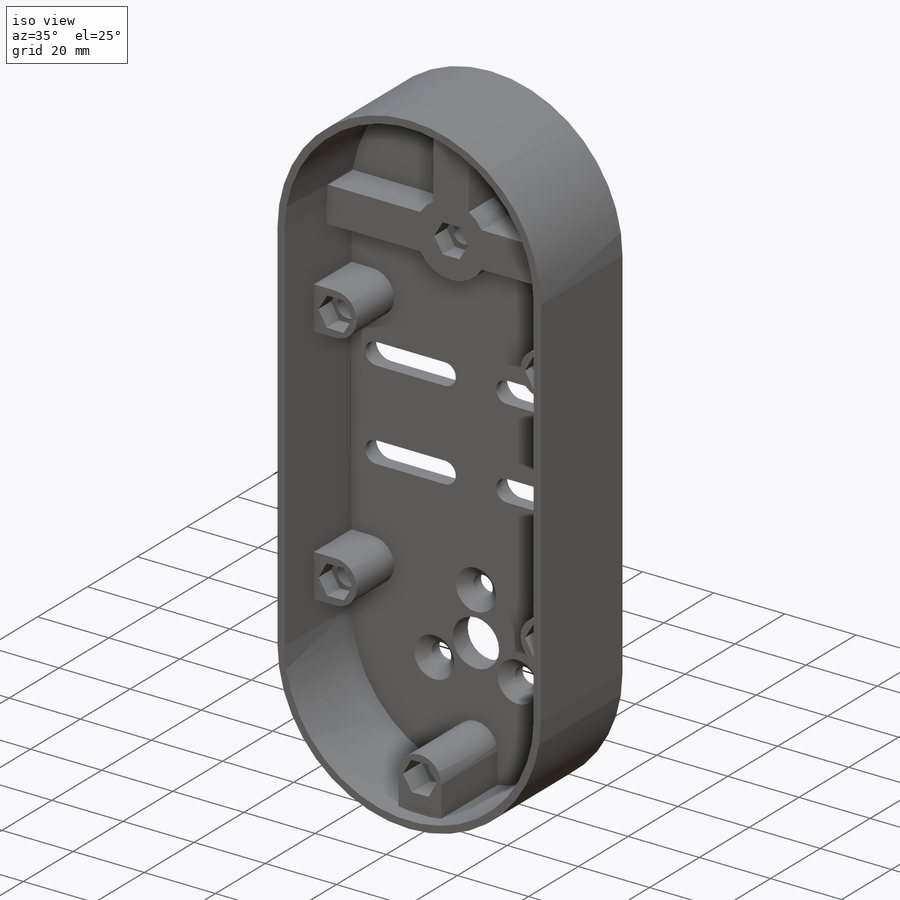
[diagram: iso view]
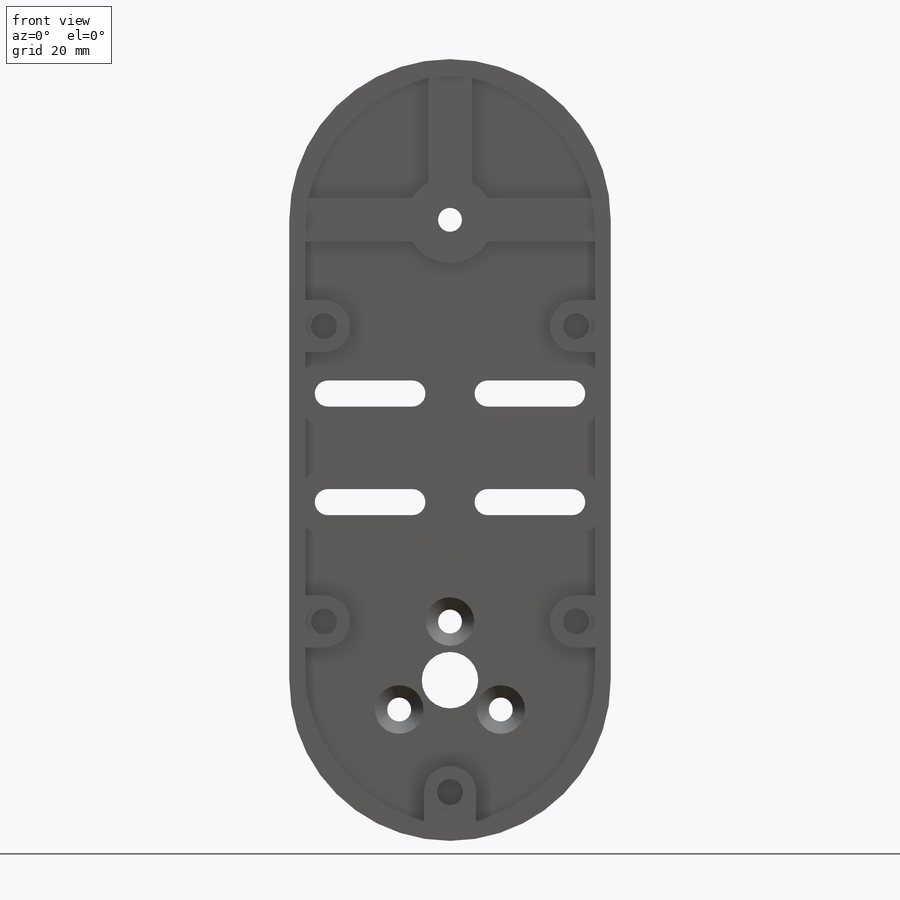
[diagram: front view]
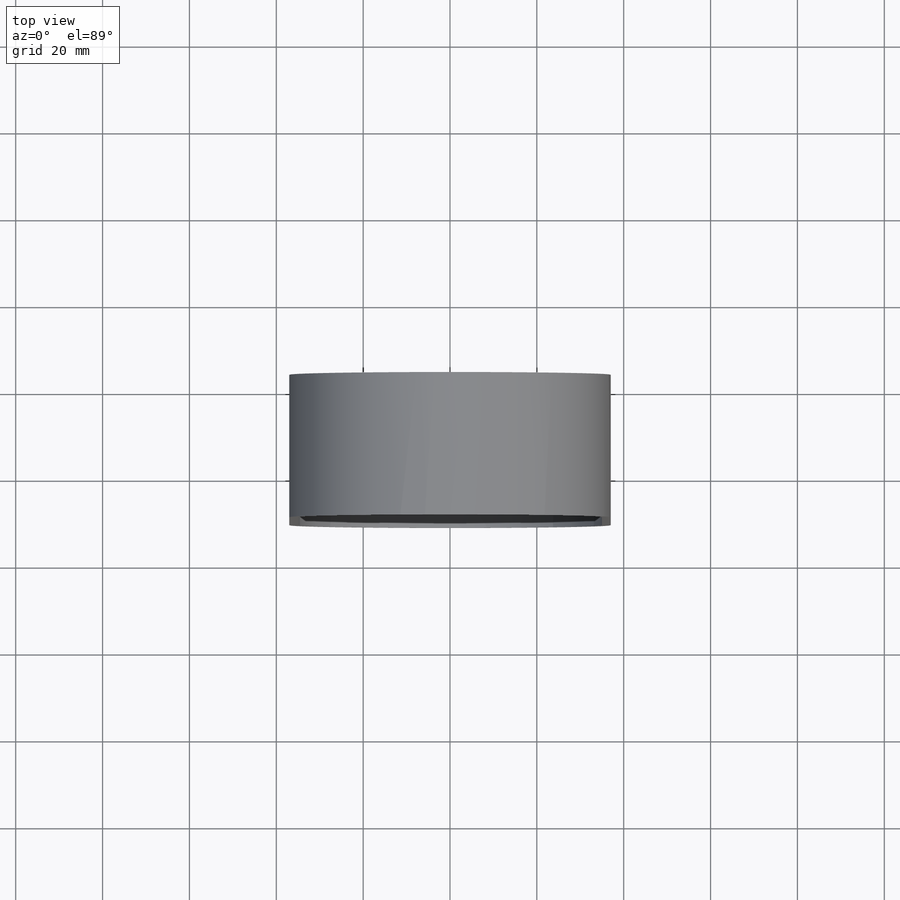
[diagram: top view]
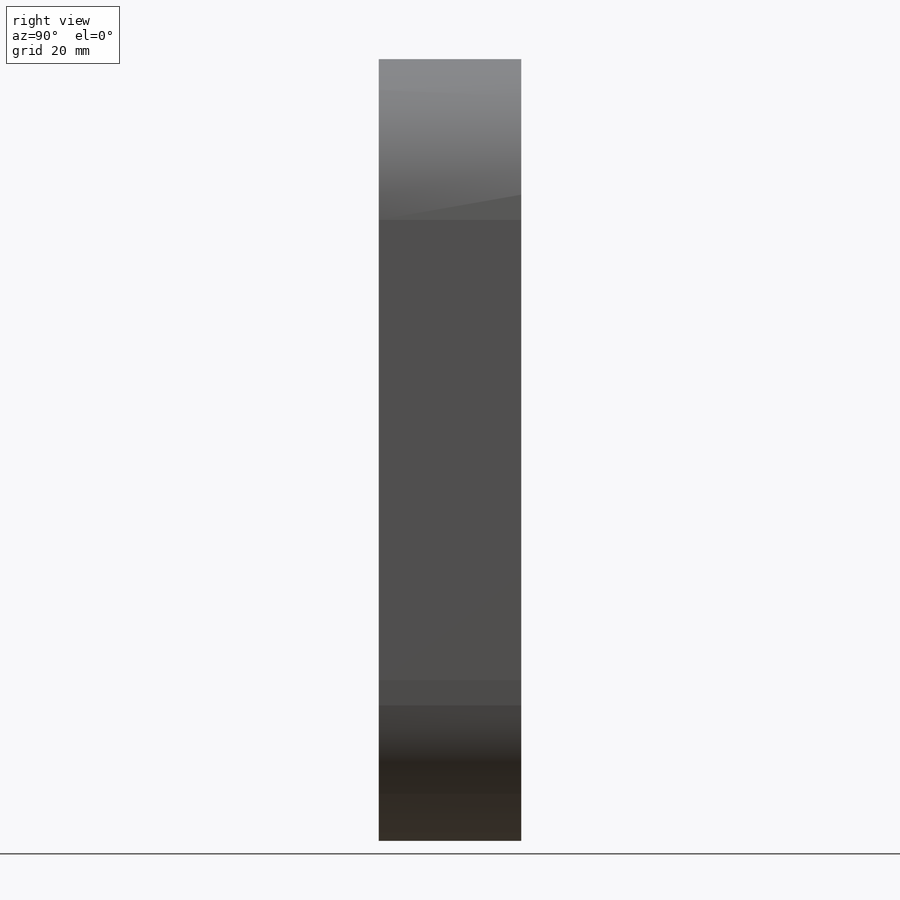
[diagram: right view]
SOLIDWORKS PART (.sldprt)
format: sldprt  version: not decoded by parser v0  size: 1,620,992 bytes
history: native  units: mm
features: sketch x25, extrude x11, cut_extrude x9, plane x4, material x1 (+9 scaffold rows collapsed)
feature tree (59):
  scaffold x9  (default folders/planes/origin — collapsed)
  material  "Material <sin especificar>"
  plane  "Alzado"
  plane  "Planta"
  plane  "Vista lateral"
  sketch  "Croquis1"  dims[D3=70.0mm D4=40.0mm D1=110.0mm D2=35.0mm]
  extrude  "Saliente-Extruir1"  Depth=4mm
  sketch  "Croquis2"  dims[c1.D1=5.5mm c1.D3=20.0mm c1.D2=110.0mm c1.D4=10.0mm c2.D2=10.0mm c2.D5=10.0mm c3.D2=10.0mm c3.D4=10.0mm c3.D5=10.0mm]
  extrude  "Saliente-Extruir2"  Depth=10mm
  sketch  "Croquis3"  dims[D1=2.0mm]
  extrude  "Saliente-Extruir3"  Depth=30.8mm
  sketch  "Croquis4"
  cut_extrude  "Cortar-Extruir1"  [1 undecoded]
  sketch  "Croquis3D2"
  sketch  "Croquis6"  dims[c1.D1=25.4mm c1.D2=93.98mm c1.4=25.4mm c1.D4=19.05mm c1.D7=33.02mm c1.D5=25.4mm c1.D3=50.8mm c1.D6=31.75mm c2.D5=58.42mm c2.D7=~8.980256mm c3.D7=90.0deg c3.D6=118.0deg c3.D8=~8.980256mm c4.D8=118.0deg c4.D9=~17.960512mm c5.D9=118.0deg c5.D3=50.8mm c5.D4=31.75mm c5.D5=58.42mm c5.D6=~4.444873mm c6.D6=120.0deg c6.D7=33.02mm c6.D8=~4.444873mm c7.D8=90.0deg c7.D9=~14.816244mm c8.D9=118.0deg c8.D1=12.7mm c8.D2=93.98mm c8.D3=25.4mm c9.D1=114.3mm c10.D1=135.0deg c11.D1=25.4mm c11.D2=93.98mm c11.D3=50.8mm c11.D4=~17.960512mm c12.D4=82.0deg c12.D5=~14.816244mm c13.D5=118.0deg c13.D6=12.7mm c13.D1=25.4mm c13.D2=93.98mm c13.D3=31.75mm c13.D4=~33.297463mm c14.D4=120.0deg c14.D5=~14.816244mm c15.D5=118.0deg c15.D1=25.4mm c15.D2=101.6mm c15.D3=31.75mm c15.D4=~3.666174mm c16.D4=120.0deg c16.D5=30.48mm c16.D6=~9.919017mm c17.D6=118.0deg c17.Diámetro de taladro hasta el siguiente=5.5mm c17.Profundidad de taladro hasta el siguiente=30.8mm c17.Diámetro de avellanado cercano=11.2mm c17.D4=~3.666174mm c17.Ángulo de avellanado cercano=90.0deg]
  sketch  "Croquis7"  dims[D1=8.15mm]
  cut_extrude  "Cortar-Extruir2"  Depth=5mm
  sketch  "Croquis8"  dims[D1=8.15mm]
  cut_extrude  "Cortar-Extruir3"  Depth=5mm
  plane  "Plano1"  Offset=5mm
  sketch  "Croquis16"
  cut_extrude  "Cortar-Extruir5"  Depth=70mm
  sketch  "Croquis15"  dims[D2=35.0mm D1=106.0mm]
  extrude  "Saliente-Extruir4"  Depth=4mm
  sketch  "Croquis17"  dims[D1=2.0mm]
  extrude  "Saliente-Extruir5"  Depth=4mm
  sketch  "Croquis18"  dims[D1=2.0mm]
  extrude  "Saliente-Extruir6"  Depth=26.8mm
  sketch  "Croquis19"  dims[D2=12.0mm D3=27.0mm D4=13.0mm D1=106.0mm]
  sketch  "Croquis20"  dims[D1=5.6mm D2=3.0]
  sketch  "Croquis22"
  sketch  "Croquis21"  dims[c1.D1=25.4mm c1.D2=93.98mm c1.4=25.4mm c1.D4=19.05mm c1.D7=33.02mm c1.D5=25.4mm c1.D3=50.8mm c1.D6=31.75mm c2.D5=58.42mm c2.D7=~8.980256mm c3.D7=90.0deg c3.D6=118.0deg c3.D8=~8.980256mm c4.D8=118.0deg c4.D9=~17.960512mm c5.D9=118.0deg c5.D3=50.8mm c5.D4=31.75mm c5.D5=58.42mm c5.D6=~4.444873mm c6.D6=120.0deg c6.D7=33.02mm c6.D8=~4.444873mm c7.D8=90.0deg c7.D9=~14.816244mm c8.D9=118.0deg c8.D1=12.7mm c8.D2=93.98mm c8.D3=25.4mm c9.D1=114.3mm c10.D1=135.0deg c11.D1=25.4mm c11.D2=93.98mm c11.D3=50.8mm c11.D4=~17.960512mm c12.D4=82.0deg c12.D5=~14.816244mm c13.D5=118.0deg c13.D6=12.7mm c13.D1=25.4mm c13.D2=93.98mm c13.D3=31.75mm c13.D4=~33.297463mm c14.D4=120.0deg c14.D5=~14.816244mm c15.D5=118.0deg c15.D1=25.4mm c15.D2=101.6mm c15.D3=31.75mm c15.D4=~3.666174mm c16.D4=120.0deg c16.D5=30.48mm c16.D6=~9.919017mm c17.D6=118.0deg c17.Diámetro de taladro hasta el siguiente=5.5mm c17.Profundidad de taladro hasta el siguiente=4.0mm c17.Diámetro de avellanado cercano=11.2mm c17.D4=~3.666174mm c17.Ángulo de avellanado cercano=90.0deg]
  cut_extrude  "Cortar-Extruir6"  Depth=10mm
  sketch  "Croquis23"  dims[c1.D1=3.0mm c1.D3=3.0mm c1.D6=3.0mm c1.D7=3.0mm c1.D2=20.0mm c1.D4=35.0mm c1.D5=40.0mm c2.D2=25.0mm c2.D5=25.0mm c2.D3=~19.477305mm]
  cut_extrude  "Cortar-Extruir7"  Depth=10mm
  sketch  "Croquis26"  dims[D1=6.0mm D2=8.2mm]
  extrude  "Saliente-Extruir7"  Depth=22.5mm
  sketch  "Croquis27"  dims[D1=2.0mm]
  extrude  "Saliente-Extruir8"  Depth=15mm
  sketch  "Croquis28"  dims[D1=6.0mm]
  cut_extrude  "Cortar-Extruir9"  Depth=15mm
  sketch  "Croquis29"  dims[c1.D2=6.0mm c1.D4=40.0mm c1.D1=6.0mm c2.D2=15.22mm c2.D3=8.2mm c2.D4=8.2mm c2.D5=28.0mm c2.D6=6.0mm]
  extrude  "Saliente-Extruir9"  Depth=15mm
  sketch  "Croquis30"  dims[D3=28.0mm D1=0.0mm D2=2.0mm]
  extrude  "Saliente-Extruir10"  Depth=10mm
  sketch  "Croquis31"  dims[D1=6.0mm D2=6.0mm D3=6.0mm]
  cut_extrude  "Cortar-Extruir10"  Depth=10mm
  sketch  "Croquis35"  dims[D1=0.0mm]
  extrude  "Saliente-Extruir11"  Depth=2mm
  sketch  "Croquis36"  dims[D1=4.15mm]
  cut_extrude  "Cortar-Extruir12"  Depth=4mm
decode coverage: 40 of 45 modeling features carry decoded parameters
note: ~ marks probable driven/reference dimensions
note: 1 parameter value undecoded
note: suppression state not decoded; provenance and decode notes live in map.json
